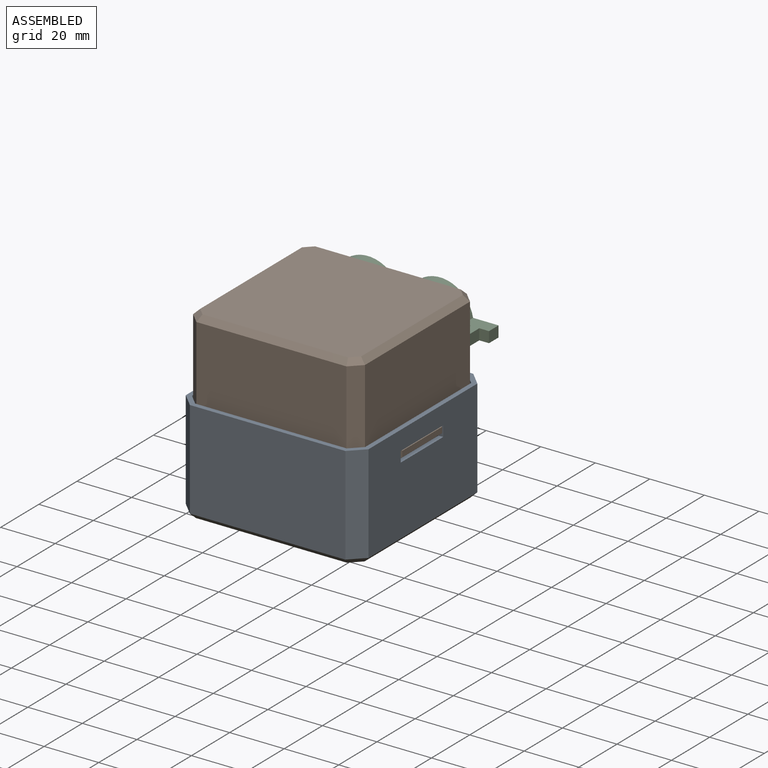
[diagram: assembled view]
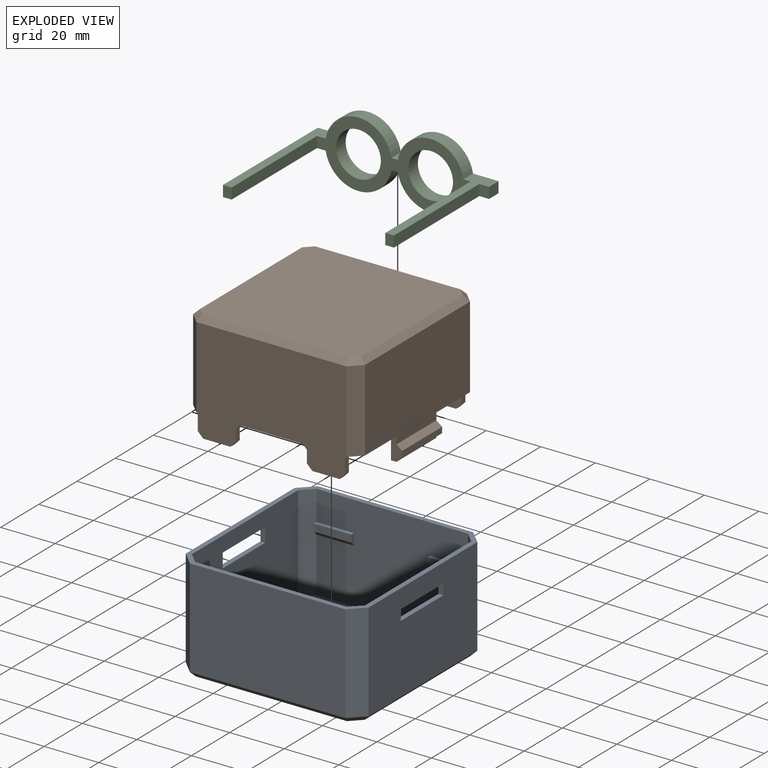
[diagram: exploded view]
GUIDED TOUR — MATED ASSEMBLY (Onshape document 6b63c966af8b5dea4d5c39f0, AutoMate assembly 6b63c966af8b5dea4d5c39f0_6f491fbd28c6f3461aa9494a_1ca9cd65be3526a2bda222f6_default)

This assembly has 3 components, labeled P0..P2 below (a component is one placed occurrence of a part; the same part can appear more than once), held together by 4 mates. A mate is a constraint between two components; its type names the relative motion it leaves free:
  FASTENED — locks the two components together rigidly (no relative motion),
  PLANAR — leaves sliding in the plane through the listed point (normal = the listed direction) and rotation about that normal free.
Axis/direction vectors are unit vectors and 'through' points are millimeter coordinates, both in the assembly's world frame.

MATES
  1. FASTENED "Fastened 1": P2 <-> P1, direction (0.000, -1.000, 0.000) through (51.95, 68.21, 51.17) mm
  2. PLANAR "Planar 2": P1 <-> P0, direction (0.000, 0.000, -1.000) through (18.71, 4.71, 26.22) mm
  3. PLANAR "Planar 3": P0 <-> P1, direction (-1.000, 0.000, 0.000) through (70.46, 45.84, 26.35) mm
  4. PLANAR "Planar 1": P1 <-> P0, direction (0.000, -1.000, 0.000) through (38.71, 3.71, 47.02) mm

ASSEMBLY ORDER
  1. P1 — the base component [order heuristic]
  2. P0 — core [order heuristic]
  3. P2 [order verified]
Order-tag legend:
  [order verified] — this step's position reverses a verified removal order: the component was checked to insert without passing through the ones already placed.
  [order heuristic] — the first 2 components form the assembly's core: parts whose collision-free extraction could not be verified, listed in mate-graph order.

Of the 3 components, 1 carries the full construction recipe — the FeatureScript program that regenerates the part's solid from scratch; the rest are supplied as boundary geometry only.
Each toured component is shown spotlighted twice — in the assembled view, then in the exploded view, where a leader line traces a displaced component back to its assembled socket (saturated green if recipe-attached, orange if geometry-only; every other component desaturated gray) — followed by its recipe or geometry summary and the mates that hold it.
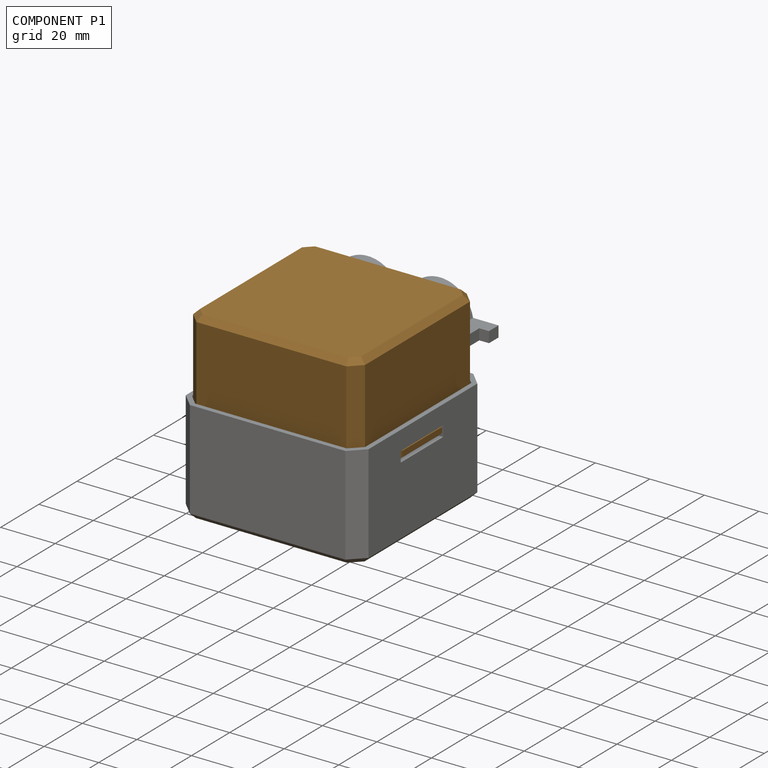
[diagram: component P1 — assembled]
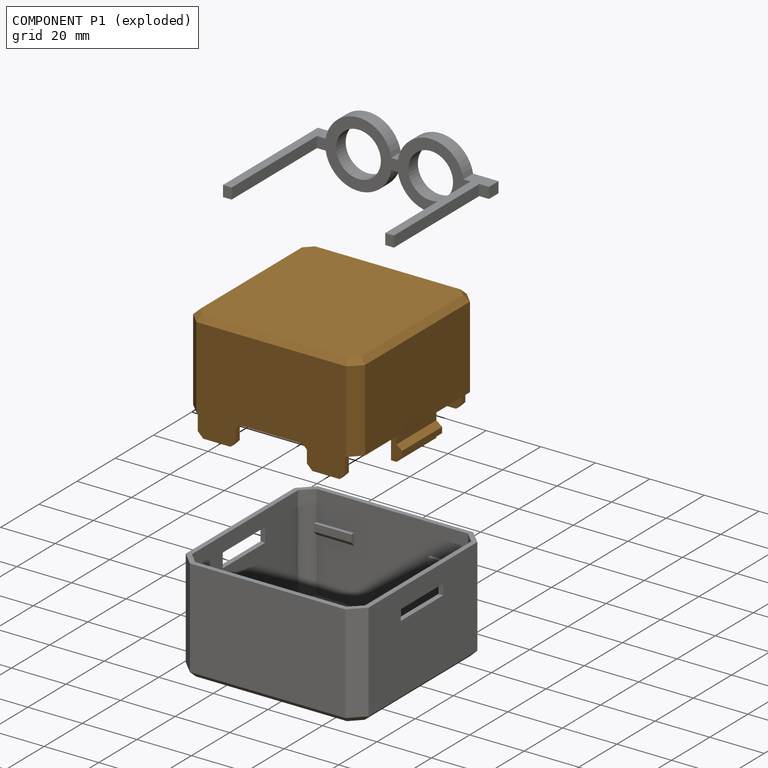
[diagram: component P1 — exploded]
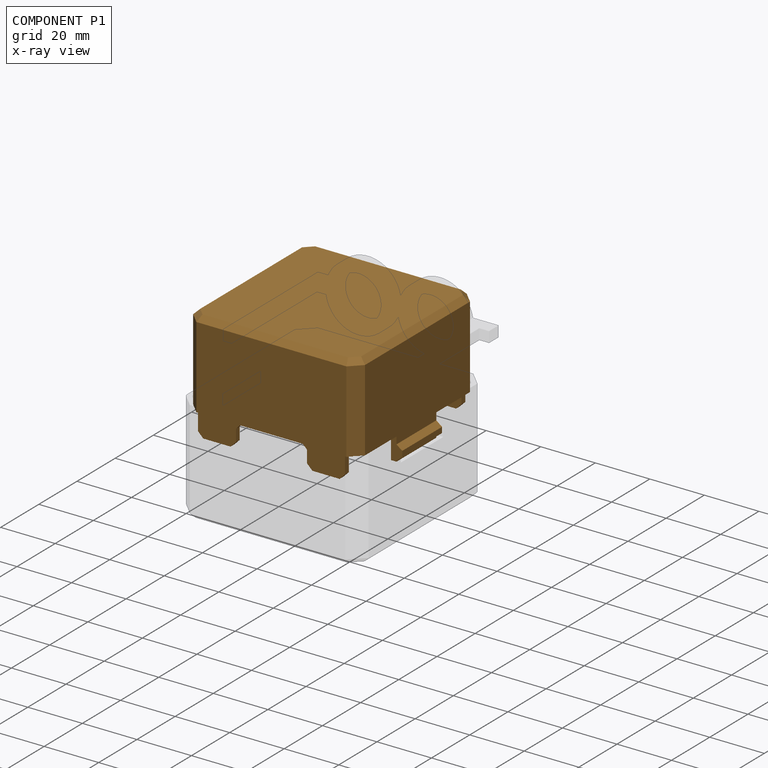
[diagram: component P1 — x-ray view]
COMPONENT P1 — geometry summary (no construction recipe available for this part):
  bounding box: 67.2 x 64.5 x 40.4 mm
  B-rep topology: 1 solid, 82 faces, 456 edges
  volume: 24124 mm^3 (14% of its bounding box)
  symmetry: mirror-symmetric across its x mid-plane
Held by: FASTENED mate "Fastened 1" to P2; PLANAR mate "Planar 2" to P0; PLANAR mate "Planar 3" to P0; PLANAR mate "Planar 1" to P0.
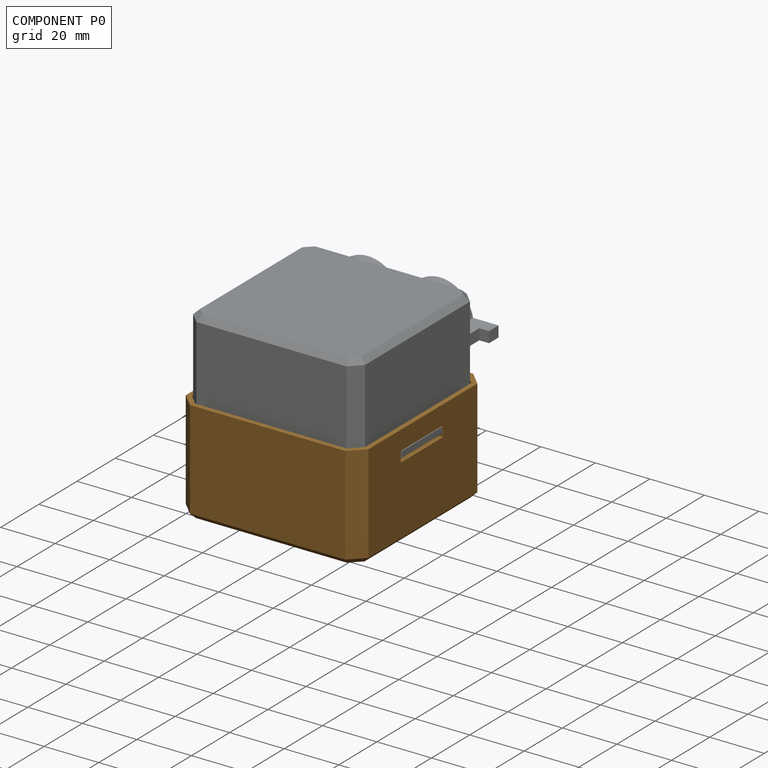
[diagram: component P0 — assembled]
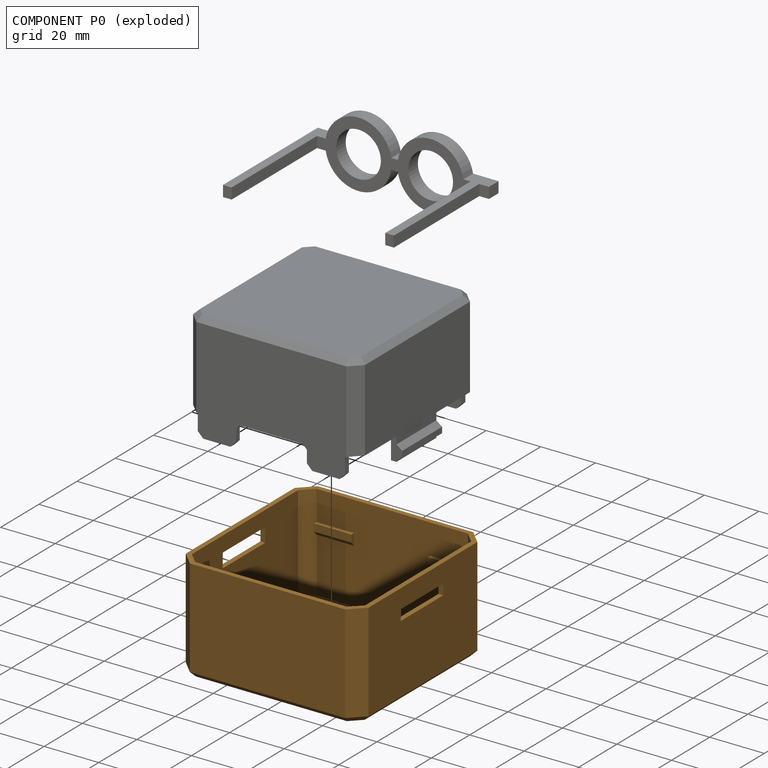
[diagram: component P0 — exploded]
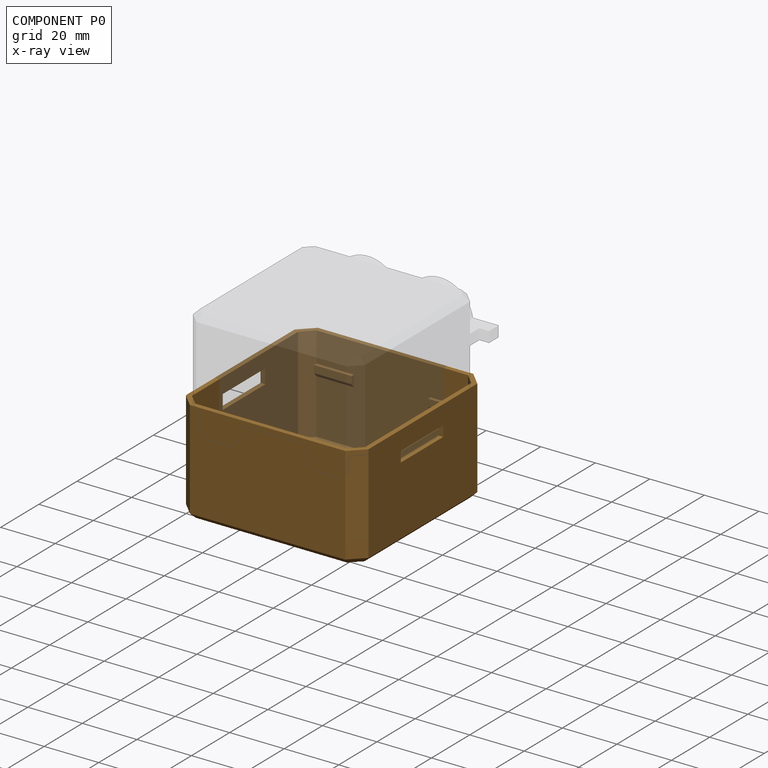
[diagram: component P0 — x-ray view]
COMPONENT P0 — geometry summary (no construction recipe available for this part):
  bounding box: 67.0 x 67.0 x 38.0 mm
  B-rep topology: 1 solid, 63 faces, 312 edges
  volume: 23157 mm^3 (14% of its bounding box)
  symmetry: 2-fold rotationally symmetric about the z axis; mirror-symmetric across its x mid-plane, y mid-plane
Held by: PLANAR mate "Planar 2" to P1; PLANAR mate "Planar 3" to P1; PLANAR mate "Planar 1" to P1.
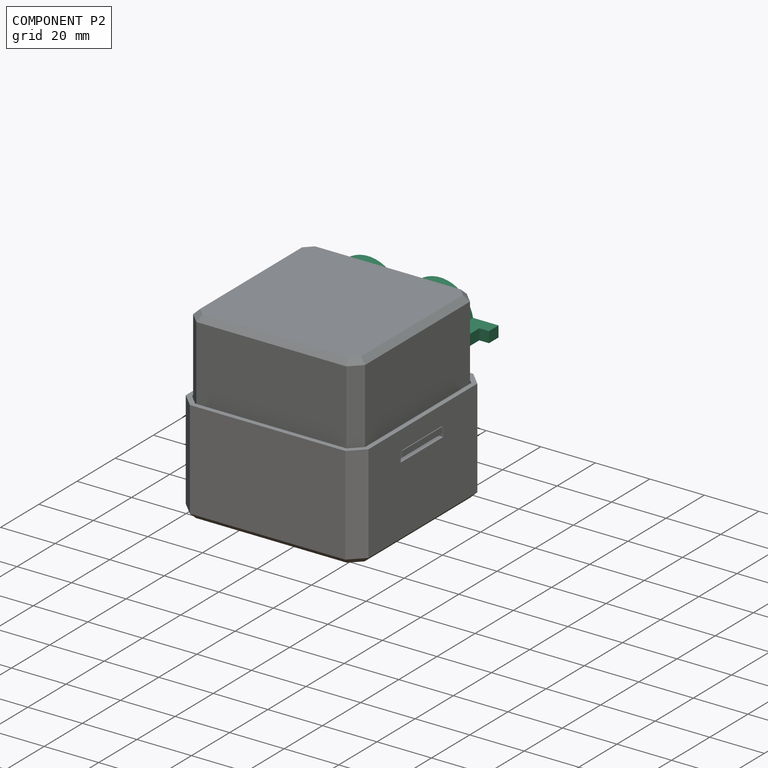
[diagram: component P2 — assembled]
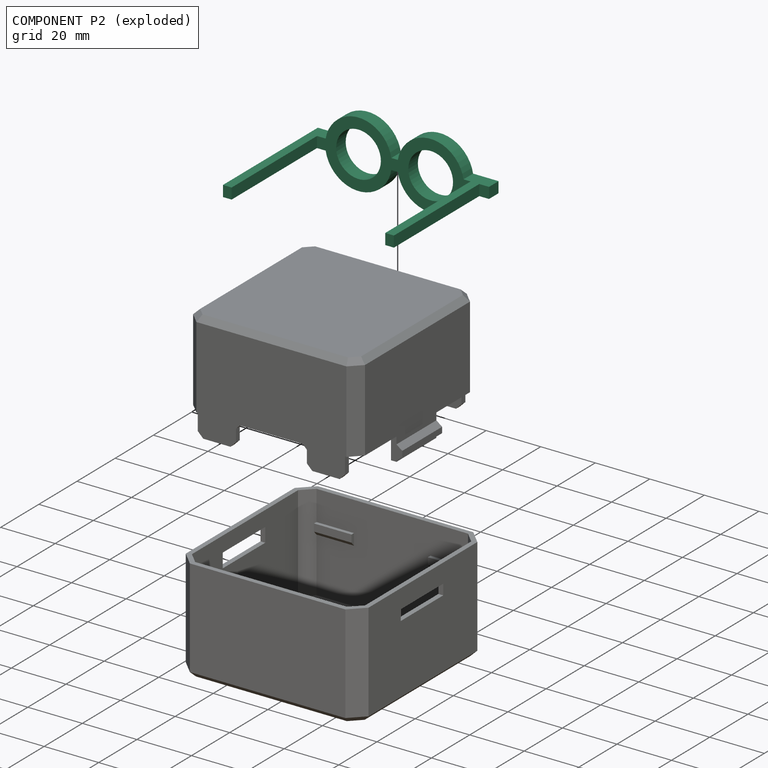
[diagram: component P2 — exploded]
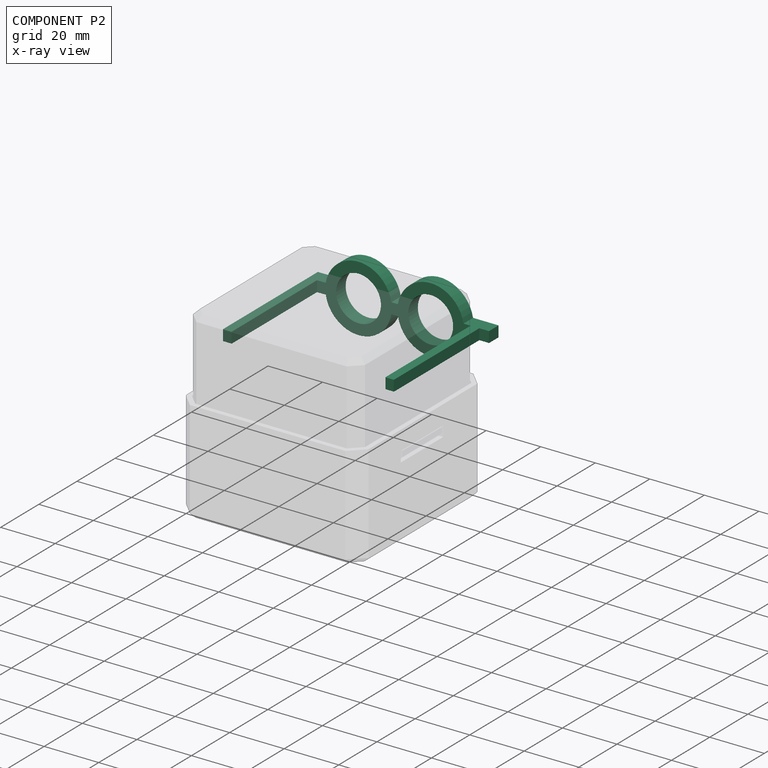
[diagram: component P2 — x-ray view]
COMPONENT P2 — recipe-attached (CADFS 00629929, mesh-verified: the recipe's output STEP matches this component's geometry to below the mesh-comparison resolution (tessellation chordal tolerance ~0.129 mm)).
Held by: FASTENED mate "Fastened 1" to P1.
Construction recipe (FeatureScript — the CAD program that rebuilds this solid; sketch coordinates are in the units given by the * unit suffixes, e.g. mm):

FeatureScript 1511;
import(path : "onshape/std/geometry.fs", version : "1511.0");
import(path : "onshape/std/common.fs", version : "1511.0");
const mm = millimeter;
const VERTEX = EntityType.VERTEX;
const EDGE = EntityType.EDGE;
const FACE = EntityType.FACE;
const BODY = EntityType.BODY;
function v(x, y){return vector(x, y);}
function OD(order){return orderDisambiguation(order);}
function OSD(set){return originalSetDisambiguation(set);}
function TD(topology){return topologyDisambiguation(topology);}
function TDD(query){return trueDependencyDisambiguation(query);}
function sQuery(a, b, c) {return sketchEntityQuery(a, b, c);}

annotation { "Feature Type Name" : "Feature", "Feature Type Description" : "" }
export const myFeature = defineFeature(function(context is Context, id is Id, definition is map)
    precondition{}
    {
        {
            var Q0;
            Q0=qCreatedBy(makeId("Front.planeOp"),FACE);
            var sketch = newSketch(context, id + "F0", { "sketchPlane" : qUnion([Q0])});
            skCircle(sketch, "E0", {"center": v(0, 0) * mm, "radius": 8.2 * mm});
            skArc(sketch, "E1.0", {"start": v(-12.03, -2) * mm, "mid": v(0, -12.2) * mm, "end": v(12.03, -2) * mm});
            skCircle(sketch, "E2", {"center": v(26.46, 0) * mm, "radius": 8.2 * mm});
            skArc(sketch, "E3.0", {"start": v(38.5, 2) * mm, "mid": v(26.46, 12.2) * mm, "end": v(14.43, 2) * mm});
            skPoint(sketch, "E4.middle", {"position": v(26.16, 0) * mm});
            skLineSegment(sketch, "E5.bottom", {"start": v(44.86, 2) * mm, "end": v(38.5, 2) * mm});
            skLineSegment(sketch, "E5.top", {"start": v(44.86, -2) * mm, "end": v(38.5, -2) * mm});
            skLineSegment(sketch, "E5.left", {"start": v(44.86, -2) * mm, "end": v(44.86, 2) * mm});
            skPoint(sketch, "E5.middle", {"position": v(35.66, 0) * mm});
            skPoint(sketch, "E6.middle", {"position": v(10.4, 0) * mm});
            skPoint(sketch, "E7.orphan", {"position": v(26.46, 2) * mm});
            skPoint(sketch, "E8.trimOffspring.end.orphan", {"position": v(26.46, -2) * mm});
            skLineSegment(sketch, "E9.bottom", {"start": v(-12.03, -2) * mm, "end": v(-21.4, -2) * mm});
            skLineSegment(sketch, "E9.top", {"start": v(-12.03, 2) * mm, "end": v(-21.4, 2) * mm});
            skLineSegment(sketch, "E9.right", {"start": v(-21.4, -2) * mm, "end": v(-21.4, 2) * mm});
            skPoint(sketch, "E9.middle", {"position": v(-10.7, 0) * mm});
            skPoint(sketch, "E10.orphan", {"position": v(0, 2) * mm});
            skPoint(sketch, "E11.orphan", {"position": v(0, -2) * mm});
            skLineSegment(sketch, "E12.bottom", {"start": v(14.43, -2) * mm, "end": v(12.03, -2) * mm});
            skLineSegment(sketch, "E12.top", {"start": v(14.43, 2) * mm, "end": v(12.03, 2) * mm});
            skPoint(sketch, "E12.middle", {"position": v(13.46, 0) * mm});
            skPoint(sketch, "E12.left.end.orphan", {"position": v(16.96, 2) * mm});
            skPoint(sketch, "E13.orphan", {"position": v(16.96, -2) * mm});
            skArc(sketch, "E14.trimOffspring", {"start": v(14.43, -2) * mm, "mid": v(26.46, -12.2) * mm, "end": v(38.5, -2) * mm});
            skArc(sketch, "E15.trimOffspring", {"start": v(12.03, 2) * mm, "mid": v(0, 12.2) * mm, "end": v(-12.03, 2) * mm});
            skPoint(sketch, "E16.orphan", {"position": v(9.96, 2) * mm});
            skPoint(sketch, "E17.orphan", {"position": v(9.96, -2) * mm});
            skSolve(sketch);
        }
        {
            var Q0;
            Q0=makeQuery(id+"F0.imprint","IMPRINT",FACE,{"disambiguationData":[TD([[makeQuery(id+"F0.imprint","IMPRINT",EDGE,{"derivedFrom":sQuery(id+"F0.wireOp",EDGE,"E0")}),-1.0]])]});
            extrude(context, id + "F1", {"entities" : qUnion([Q0]), "depth" : 5 * mm, "offsetDistance" : 25 * mm});
        }
        {
            var Q0;
            Q0=makeQuery(id+"F1.opExtrude","CAP_FACE",FACE,{"disambiguationData":[OSD([sQuery(id+"F0.wireOp",EDGE,"E0"),sQuery(id+"F0.wireOp",EDGE,"E1.0"),sQuery(id+"F0.wireOp",EDGE,"E2"),sQuery(id+"F0.wireOp",EDGE,"E3.0"),sQuery(id+"F0.wireOp",EDGE,"E5.bottom"),sQuery(id+"F0.wireOp",EDGE,"E5.top"),sQuery(id+"F0.wireOp",EDGE,"E5.left"),sQuery(id+"F0.wireOp",EDGE,"E9.bottom"),sQuery(id+"F0.wireOp",EDGE,"E9.top"),sQuery(id+"F0.wireOp",EDGE,"E9.right"),sQuery(id+"F0.wireOp",EDGE,"E12.bottom"),sQuery(id+"F0.wireOp",EDGE,"E12.top"),sQuery(id+"F0.wireOp",EDGE,"E14.trimOffspring"),sQuery(id+"F0.wireOp",EDGE,"E15.trimOffspring")])],"isStart":false});
            var sketch = newSketch(context, id + "F2", { "sketchPlane" : qUnion([Q0])});
            skLineSegment(sketch, "E18.bottom", {"start": v(-17.83, 2) * mm, "end": v(-14.64, 2) * mm});
            skLineSegment(sketch, "E18.top", {"start": v(-17.83, -2) * mm, "end": v(-14.64, -2) * mm});
            skLineSegment(sketch, "E18.left", {"start": v(-17.83, 2) * mm, "end": v(-17.83, -2) * mm});
            skLineSegment(sketch, "E18.right", {"start": v(-14.64, 2) * mm, "end": v(-14.64, -2) * mm});
            skLineSegment(sketch, "E19.bottom", {"start": v(41.68, 2) * mm, "end": v(44.86, 2) * mm});
            skLineSegment(sketch, "E19.top", {"start": v(41.68, -2) * mm, "end": v(44.86, -2) * mm});
            skLineSegment(sketch, "E19.left", {"start": v(41.68, 2) * mm, "end": v(41.68, -2) * mm});
            skLineSegment(sketch, "E19.right", {"start": v(44.86, 2) * mm, "end": v(44.86, -2) * mm});
            skSolve(sketch);
        }
        {
            var Q0;
            Q0=makeQuery(id+"F2.imprint","IMPRINT",FACE,{"disambiguationData":[TD([[makeQuery(id+"F2.imprint","IMPRINT",EDGE,{"derivedFrom":sQuery(id+"F2.wireOp",EDGE,"E18.bottom")}),1.0]])]});
            var Q1;
            Q1=makeQuery(id+"F2.imprint","IMPRINT",FACE,{"disambiguationData":[TD([[makeQuery(id+"F2.imprint","IMPRINT",EDGE,{"derivedFrom":sQuery(id+"F2.wireOp",EDGE,"E19.bottom")}),1.0]])]});
            extrude(context, id + "F3", {"entities" : qUnion([Q0, Q1]), "operationType" : NewBodyOperationType.ADD, "depth" : 44.7 * mm, "offsetDistance" : 25 * mm});
        }
    });
PROVENANCE & LICENSES
Assembly (occurrences, transforms, mates, per-part STEP geometry): AutoMate dataset, Zenodo record 7776208, CC0.
Construction recipes: CADFS (HuggingFace VladPyatov/CADFS, CC-BY-4.0, layered over the ABC dataset), FeatureScript reconstruction programs keyed by ABC model id.
Join: ABC meta listings map ABC model id -> Onshape documentId; within a shared document, parts are matched by geometric signature (bounding-box dims + volume at 0.1% relative tolerance, exact B-rep face/solid counts).
Verification: 1 of this assembly's 3 components carries a recipe attachment, and every attachment is mesh-verified: the CADFS STEP and the AutoMate member STEP were compared as meshes in their shared local frame (symmetric sampled-point-to-mesh distance); worst across the 1 attachment: below the mesh-comparison resolution (tessellation chordal tolerance ~0.129 mm) on a 86 mm part.
Renders: orthographic iso camera (az 35 / el 25); the floor grid conveys scale (grid pitch printed in each image; no ruler). In the exploded view each component is displaced by its stored offset vector: the offsets alone carry the explosion direction (mate normal/axis signs are not orientation cues and do not encode it), and separation distances are assigned per mate-chain, not proportionally to assembly-order depth.
